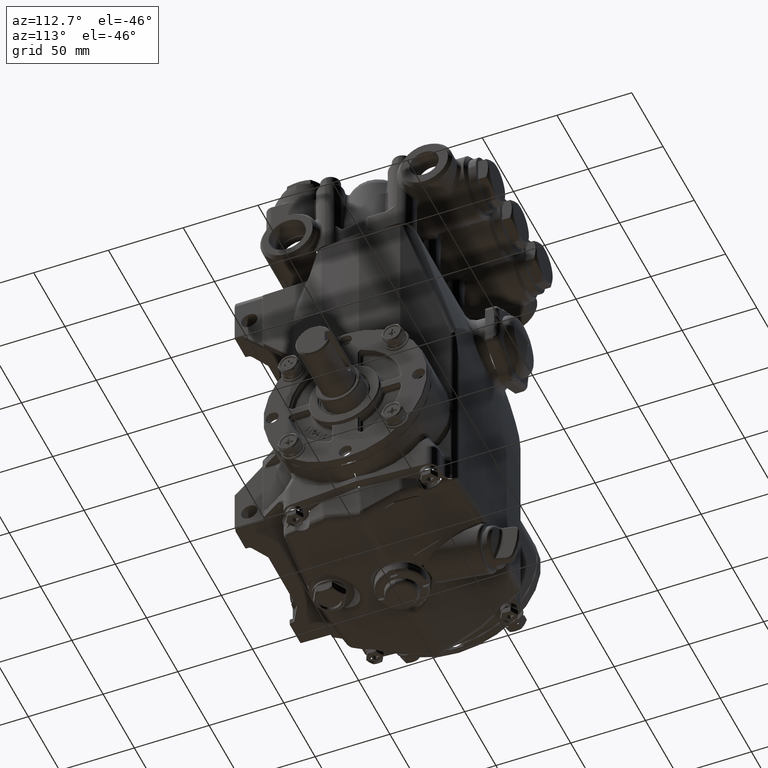
[diagram: clean part render]
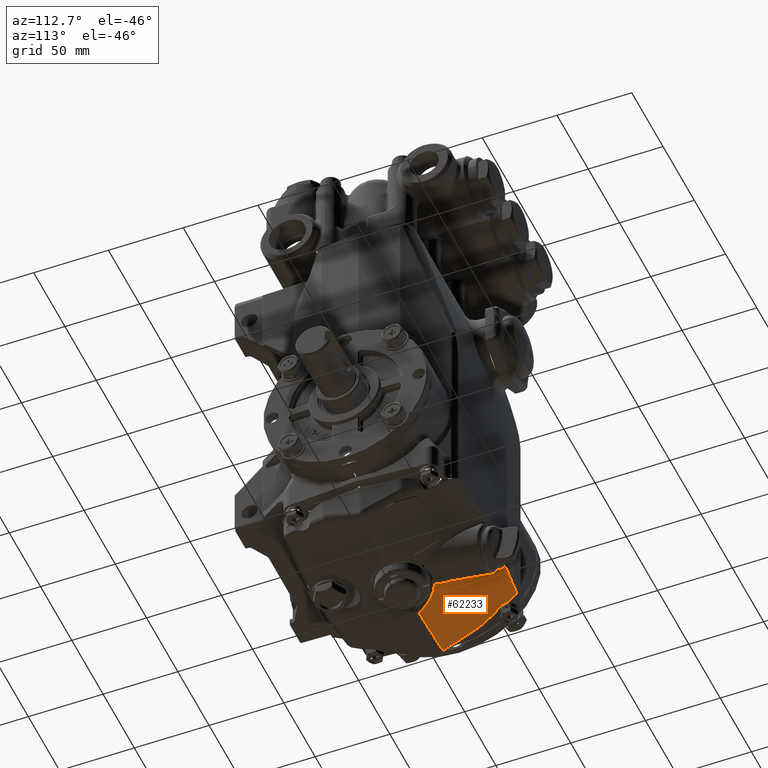
[diagram: same view with one face highlighted and labeled with its STEP entity id]
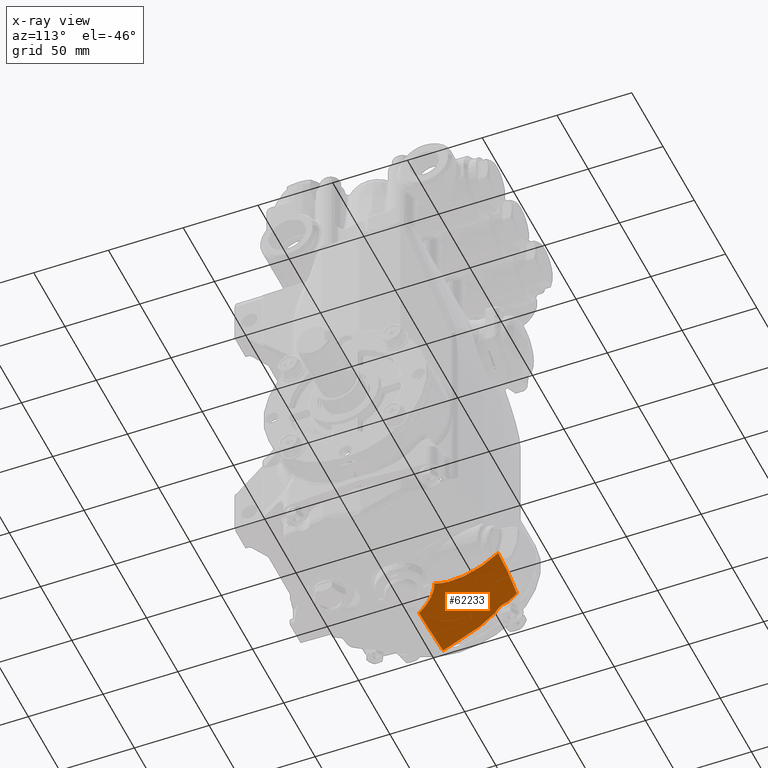
[diagram: x-ray of the same camera — body ghosted, the highlighted face saturated]
A machine part, auxiliary view. The second image highlights one B-rep face of the part: STEP entity #62233.
The next image is the same camera in x-ray: the body ghosted, the highlighted face saturated — about 0% of this face is hidden behind the body in this view.
In plain terms, the highlighted conical surface has half-angle 22.122 deg.
Its self-contained STEP definition (entity closure, byte-faithful):
#431 = EDGE_CURVE ( 'NONE', #23256, #15825, #50522, .T. ) ;
#709 = DIRECTION ( 'NONE',  ( 0.000000000000000000, 0.000000000000000000, 1.000000000000000000 ) ) ;
#1308 = DIRECTION ( 'NONE',  ( -0.000000000000000000, 1.000000000000000000, -0.000000000000000000 ) ) ;
#2458 = CARTESIAN_POINT ( 'NONE',  ( -2.089828594693212249, 2.076546598494372731, -2.425442005259725864 ) ) ;
#3055 = CARTESIAN_POINT ( 'NONE',  ( -2.105961787999701240, 2.028013981821954470, -2.443487220557283734 ) ) ;
#5141 = CARTESIAN_POINT ( 'NONE',  ( -0.4534143523890170613, 0.8407482493142073299, -3.038746929701223731 ) ) ;
#5972 = CARTESIAN_POINT ( 'NONE',  ( -2.419652811728707498, 0.06665084116985581231, -3.209249740225000203 ) ) ;
#6082 = CARTESIAN_POINT ( 'NONE',  ( -2.370908097816133875, 1.041686362196853066, -2.815902620722948058 ) ) ;
#6206 = CARTESIAN_POINT ( 'NONE',  ( -2.282667844776855581, 1.337796322348131284, -2.705411053605920380 ) ) ;
#6833 = CARTESIAN_POINT ( 'NONE',  ( -2.247045865074766446, 1.481586009587264607, -2.650796477659207895 ) ) ;
#7309 = CARTESIAN_POINT ( 'NONE',  ( -0.7953639423799776509, 0.3195549148169788967, -3.239746146987026787 ) ) ;
#7823 = CARTESIAN_POINT ( 'NONE',  ( -2.420161948378638961, 0.06776344674494035047, -3.208730838945085484 ) ) ;
#8776 = B_SPLINE_CURVE_WITH_KNOTS ( 'NONE', 3,
 ( #122194, #95219, #102799, #93376, #93994, #112803, #84578, #122806, #27384, #36812, #75144, #65721, #104017, #46852 ),
 .UNSPECIFIED., .F., .F.,
 ( 4, 2, 2, 2, 2, 2, 4 ),
 ( 0.000000000000000000, 0.002756366929428791853, 0.004134550394143182359, 0.005512733858857573298, 0.006890917323571964237, 0.008269100788286356044, 0.01102546771771510323 ),
 .UNSPECIFIED. ) ;
#11267 = CARTESIAN_POINT ( 'NONE',  ( -2.239192553431414545, 1.514628471646269237, -2.638203994132757746 ) ) ;
#13285 = ORIENTED_EDGE ( 'NONE', *, *, #43758, .T. ) ;
#13709 = CARTESIAN_POINT ( 'NONE',  ( -2.106833777908742267, 2.025303016463327666, -2.444498181534298986 ) ) ;
#13776 = CARTESIAN_POINT ( 'NONE',  ( -2.351981269848030909, 1.100078426941403675, -2.794328555038241735 ) ) ;
#15633 = CARTESIAN_POINT ( 'NONE',  ( -2.338981467347810206, 1.139969586866302897, -2.779587295815173054 ) ) ;
#15825 = VERTEX_POINT ( 'NONE', #11267 ) ;
#16019 = CARTESIAN_POINT ( 'NONE',  ( -2.419676816361628902, 0.06668264514864659376, -3.209233735378106189 ) ) ;
#16137 = CARTESIAN_POINT ( 'NONE',  ( -0.7633188674158031262, 0.3692218355631260995, -3.220819549807315774 ) ) ;
#17366 = CARTESIAN_POINT ( 'NONE',  ( -0.5471699861507840490, 0.5940639626121999584, -3.136651000206044593 ) ) ;
#19441 = VERTEX_POINT ( 'NONE', #77503 ) ;
#20900 = CARTESIAN_POINT ( 'NONE',  ( -0.4970818853032223927, 0.6282010003291977895, -3.124100886979437330 ) ) ;
#21126 = CARTESIAN_POINT ( 'NONE',  ( -2.145483851197569347, 1.895385442356894767, -2.493269591574716060 ) ) ;
#22540 = CARTESIAN_POINT ( 'NONE',  ( -2.086244960231473655, 2.086973706991400501, -2.421576619972003463 ) ) ;
#23202 = CARTESIAN_POINT ( 'NONE',  ( -2.365754402666913947, 1.060583947308351593, -2.808800569280849313 ) ) ;
#23256 = VERTEX_POINT ( 'NONE', #38525 ) ;
#23590 = VERTEX_POINT ( 'NONE', #37607 ) ;
#25687 = CARTESIAN_POINT ( 'NONE',  ( -2.315816207667558135, 1.216937408934904763, -2.750892497880090826 ) ) ;
#25878 = CARTESIAN_POINT ( 'NONE',  ( -0.6480855539005315746, 1.396325284329595462, -2.807228530220871932 ) ) ;
#26487 = CARTESIAN_POINT ( 'NONE',  ( -0.3911913583454598164, 0.7533386299745664649, -3.075654932312250178 ) ) ;
#27384 = CARTESIAN_POINT ( 'NONE',  ( -2.133926601213085750, 1.729028275977938511, -2.562643219636337122 ) ) ;
#27523 = CARTESIAN_POINT ( 'NONE',  ( -2.248284771375940405, 1.476384998560242190, -2.652778579777888890 ) ) ;
#28923 = FACE_OUTER_BOUND ( 'NONE', #116208, .T. ) ;
#31678 = ORIENTED_EDGE ( 'NONE', *, *, #431, .T. ) ;
#31935 = CARTESIAN_POINT ( 'NONE',  ( -2.101909552334381370, 2.040545470188020349, -2.438816248550844445 ) ) ;
#32167 = CARTESIAN_POINT ( 'NONE',  ( -0.4970818853032223927, 0.6282010003291977895, -3.124100886979437330 ) ) ;
#33796 = CARTESIAN_POINT ( 'NONE',  ( -2.083051459980967746, 2.096202434341106979, -2.418157522767000689 ) ) ;
#35261 = CARTESIAN_POINT ( 'NONE',  ( -0.5963636592327616892, 2.221157972251702528, -2.473459348452818674 ) ) ;
#35456 = CARTESIAN_POINT ( 'NONE',  ( -2.419924013427050546, 0.06702762038351636753, -3.209061766227430113 ) ) ;
#36325 = CARTESIAN_POINT ( 'NONE',  ( -2.243946200967676496, 1.494683181079834666, -2.645802879278591924 ) ) ;
#36812 = CARTESIAN_POINT ( 'NONE',  ( -2.130418196808632203, 1.762905439732481039, -2.549180981745167163 ) ) ;
#36825 = CARTESIAN_POINT ( 'NONE',  ( -0.8309994691032215330, 0.2557997475426720957, -3.264205412823909302 ) ) ;
#37414 = CARTESIAN_POINT ( 'NONE',  ( -0.8679404141749670343, 0.1770556956673244864, -3.294653311257132344 ) ) ;
#37532 = CARTESIAN_POINT ( 'NONE',  ( -2.295534275988072359, 1.288919518299862510, -2.723875107311677368 ) ) ;
#37607 = CARTESIAN_POINT ( 'NONE',  ( -2.419627957355980463, 0.06661965511511502847, -3.209265597297011663 ) ) ;
#38525 = CARTESIAN_POINT ( 'NONE',  ( -2.365754402666913947, 1.060583947308351593, -2.808800569280849313 ) ) ;
#38920 = DIRECTION ( 'NONE',  ( 0.000000000000000000, -1.000000000000000000, 0.000000000000000000 ) ) ;
#40723 = CARTESIAN_POINT ( 'NONE',  ( -2.108531034399803605, 2.019999179185219873, -2.446476957507912608 ) ) ;
#41110 = ORIENTED_EDGE ( 'NONE', *, *, #85557, .T. ) ;
#42574 = CARTESIAN_POINT ( 'NONE',  ( -2.116999414656701273, 1.993115830292623736, -2.456520493410592199 ) ) ;
#43328 = EDGE_CURVE ( 'NONE', #15825, #68211, #8776, .T. ) ;
#43739 = CARTESIAN_POINT ( 'NONE',  ( -2.365754402666913947, 1.060583947308351593, -2.808800569280849313 ) ) ;
#43758 = EDGE_CURVE ( 'NONE', #19441, #123205, #61061, .T. ) ;
#44506 = CARTESIAN_POINT ( 'NONE',  ( -2.305207261060470358, 1.253860689892042135, -2.737060864516472236 ) ) ;
#44698 = CARTESIAN_POINT ( 'NONE',  ( -0.5498264254133607976, 1.029590300909865919, -2.959451242769360224 ) ) ;
#45128 = CARTESIAN_POINT ( 'NONE',  ( -2.255873078898388950, 1.444835016267797423, -2.664792731496312683 ) ) ;
#45615 = CARTESIAN_POINT ( 'NONE',  ( -0.8174908305297902134, 0.2815892874649755795, -3.254283504923779269 ) ) ;
#45929 = CARTESIAN_POINT ( 'NONE',  ( -0.5738984000534242957, 2.288151114768675942, -2.446901362131494562 ) ) ;
#46852 = CARTESIAN_POINT ( 'NONE',  ( -2.145483851197569347, 1.895385442356894767, -2.493269591574716060 ) ) ;
#46864 = CARTESIAN_POINT ( 'NONE',  ( -0.6172614145108538120, 0.5365550616200835954, -3.157937945881998498 ) ) ;
#46990 = CARTESIAN_POINT ( 'NONE',  ( -2.320277892950628473, 1.201680539668949166, -2.756597568482602068 ) ) ;
#47165 = B_SPLINE_CURVE_WITH_KNOTS ( 'NONE', 3,
 ( #116719, #119770, #69648, #42574, #100392, #40723, #13709, #3055, #31935, #79074, #2458, #22540, #101019, #72128, #33796, #71493, #89719, #99758 ),
 .UNSPECIFIED., .F., .F.,
 ( 4, 1, 1, 1, 2, 2, 1, 1, 1, 2, 2, 4 ),
 ( 0.7520629099249047655, 0.8140471824436776860, 0.8450393187030641462, 0.8605353868327572098, 0.8682834208976040191, 0.8760314549624508285, 0.9070235912218362895, 0.9225196593515294641, 0.9302676934163758293, 0.9341417104487990120, 0.9380157274812220836, 1.000000000000000000 ),
 .UNSPECIFIED. ) ;
#47400 = CARTESIAN_POINT ( 'NONE',  ( -2.371414709397988929, 1.031828219432738392, -2.819877866713105252 ) ) ;
#48365 = CARTESIAN_POINT ( 'NONE',  ( 0.000000000000000000, 2.421259842519685179, 16.29921259842519632 ) ) ;
#48563 = CARTESIAN_POINT ( 'NONE',  ( -0.5738984000534242957, 2.288151114768675942, -2.446901362131494562 ) ) ;
#50522 = B_SPLINE_CURVE_WITH_KNOTS ( 'NONE', 3,
 ( #23202, #13776, #15633, #111692, #46990, #85326, #122943, #25687, #123537, #114149, #44506, #37532, #113526, #121693, #92902, #64025, #6206, #94132, #53961, #103531, #75898, #45128, #112936, #56418, #102318, #122325, #27523, #92280, #82861, #6833, #36325, #93508 ),
 .UNSPECIFIED., .F., .F.,
 ( 4, 2, 1, 2, 2, 1, 1, 1, 1, 2, 2, 1, 1, 1, 1, 1, 1, 2, 2, 1, 1, 1, 4 ),
 ( 0.000000000000000000, 0.1090416086334998202, 0.1363020107918748725, 0.1397095610616719552, 0.1431171113314690102, 0.1499322118710632867, 0.1635624129502522006, 0.2180832172670074121, 0.2453436194253847680, 0.2487511696951822948, 0.2504549448300812386, 0.2521587199649801825, 0.2589738205045760133, 0.2726040215837676195, 0.3271248259005327674, 0.3543852280589153136, 0.3680154291381066423, 0.3748305296777019735, 0.3756824172451514454, 0.3765343048126008063, 0.3782380799475034139, 0.3816456302173102944, 0.4361664345342073368 ),
 .UNSPECIFIED. ) ;
#51464 = B_SPLINE_CURVE_WITH_KNOTS ( 'NONE', 3,
 ( #54332, #5972, #16019, #83235, #35456, #83837, #7823 ),
 .UNSPECIFIED., .F., .F.,
 ( 4, 3, 4 ),
 ( 0.000000000000000000, 3.270175700441475680E-06, 3.547221947968475398E-05 ),
 .UNSPECIFIED. ) ;
#52889 = CARTESIAN_POINT ( 'NONE',  ( -0.5866588876545771880, 1.127834383794114270, -2.918421796937302304 ) ) ;
#53062 = B_SPLINE_CURVE_WITH_KNOTS ( 'NONE', 3,
 ( #80540, #69281, #60470, #88756, #108801, #32167 ),
 .UNSPECIFIED., .F., .F.,
 ( 4, 2, 4 ),
 ( 1.868354362588067661E-17, 0.002191692576854439075, 0.004383385153708859935 ),
 .UNSPECIFIED. ) ;
#53961 = CARTESIAN_POINT ( 'NONE',  ( -2.280101588475906826, 1.347707197826654379, -2.701661445491394531 ) ) ;
#54144 = CARTESIAN_POINT ( 'NONE',  ( -0.6367917226464995251, 1.328477949759711230, -2.835208735866425300 ) ) ;
#54292 = CARTESIAN_POINT ( 'NONE',  ( -2.059218054211461979, 2.164254523910876138, -2.392964009919302359 ) ) ;
#54332 = CARTESIAN_POINT ( 'NONE',  ( -2.419627957355980463, 0.06661965511511502847, -3.209265597297011663 ) ) ;
#54444 = CARTESIAN_POINT ( 'NONE',  ( -0.7716629779327800476, 0.3569129183703940167, -3.225498754172656302 ) ) ;
#55418 = ORIENTED_EDGE ( 'NONE', *, *, #99977, .T. ) ;
#56418 = CARTESIAN_POINT ( 'NONE',  ( -2.249065871622271562, 1.473120638703809160, -2.654022195501463788 ) ) ;
#57240 = ORIENTED_EDGE ( 'NONE', *, *, #120472, .T. ) ;
#57875 = ORIENTED_EDGE ( 'NONE', *, *, #89218, .T. ) ;
#59878 = ORIENTED_EDGE ( 'NONE', *, *, #43328, .T. ) ;
#60470 = CARTESIAN_POINT ( 'NONE',  ( -0.3966238274006225750, 0.6812831351925608958, -3.104846312104686312 ) ) ;
#60776 = ORIENTED_EDGE ( 'NONE', *, *, #66845, .T. ) ;
#61061 = B_SPLINE_CURVE_WITH_KNOTS ( 'NONE', 3,
 ( #54292, #92618, #73742, #64968 ),
 .UNSPECIFIED., .F., .F.,
 ( 4, 4 ),
 ( 0.001437630537140027840, 0.03931457083484087706 ),
 .UNSPECIFIED. ) ;
#61118 = VERTEX_POINT ( 'NONE', #117512 ) ;
#62189 = CIRCLE ( 'NONE', #72239, 19.65795820946284067 ) ;
#62233 = ADVANCED_FACE ( 'NONE', ( #28923 ), #112123, .T. ) ;
#64025 = CARTESIAN_POINT ( 'NONE',  ( -2.282950996085811646, 1.336706305725359201, -2.705823323501328925 ) ) ;
#64201 = CARTESIAN_POINT ( 'NONE',  ( -0.4628118034915018053, 0.8558354163146361104, -3.032389136931446849 ) ) ;
#64334 = EDGE_CURVE ( 'NONE', #101251, #103336, #115853, .T. ) ;
#64816 = CARTESIAN_POINT ( 'NONE',  ( -0.3680013907330603740, 0.7260055790598713976, -3.087226915816920325 ) ) ;
#64968 = CARTESIAN_POINT ( 'NONE',  ( -0.5738984000534242957, 2.288151114768675942, -2.446901362131494562 ) ) ;
#65070 = CARTESIAN_POINT ( 'NONE',  ( -2.387660292907503923, 0.7104732951494944215, -2.949495960029869135 ) ) ;
#65429 = CARTESIAN_POINT ( 'NONE',  ( -0.6674803062845373613, 1.602550887205807628, -2.722676000486592418 ) ) ;
#65721 = CARTESIAN_POINT ( 'NONE',  ( -2.131072140755676081, 1.830005713209250873, -2.521656605006796781 ) ) ;
#66845 = EDGE_CURVE ( 'NONE', #103336, #23590, #62189, .T. ) ;
#68211 = VERTEX_POINT ( 'NONE', #21126 ) ;
#69281 = CARTESIAN_POINT ( 'NONE',  ( -0.3700093640393017358, 0.6915924702421532011, -3.101182696825049323 ) ) ;
#69648 = CARTESIAN_POINT ( 'NONE',  ( -2.128799569645894341, 1.954344364497868858, -2.471047849660535256 ) ) ;
#71424 = CARTESIAN_POINT ( 'NONE',  ( -2.369020545168805114, 1.051271604822057393, -2.812210598031124054 ) ) ;
#71493 = CARTESIAN_POINT ( 'NONE',  ( -2.074825091056716087, 2.119887397135802320, -2.409385396393689316 ) ) ;
#72128 = CARTESIAN_POINT ( 'NONE',  ( -2.083615659677913623, 2.094576235768910610, -2.418759864974992624 ) ) ;
#72239 = AXIS2_PLACEMENT_3D ( 'NONE', #107437, #1308, #709 ) ;
#73587 = CARTESIAN_POINT ( 'NONE',  ( -0.6684412451386717580, 1.741995803894224704, -2.665922238386851717 ) ) ;
#73742 = CARTESIAN_POINT ( 'NONE',  ( -1.070860537897486697, 2.270154111408670516, -2.439006516763121635 ) ) ;
#74227 = CARTESIAN_POINT ( 'NONE',  ( -0.4337187138526713559, 0.8110008867951175038, -3.051294156443625116 ) ) ;
#74473 = CARTESIAN_POINT ( 'NONE',  ( -2.420161948378638961, 0.06776344674494035047, -3.208730838945085484 ) ) ;
#74536 = CARTESIAN_POINT ( 'NONE',  ( -0.5946736150887996786, 0.5563539949043704302, -3.150591960312228323 ) ) ;
#74844 = CARTESIAN_POINT ( 'NONE',  ( -0.6521499292801791192, 1.949079147831841219, -2.582260020623050600 ) ) ;
#75144 = CARTESIAN_POINT ( 'NONE',  ( -2.129781624731585055, 1.779814586331044390, -2.542335540109347036 ) ) ;
#75157 = CARTESIAN_POINT ( 'NONE',  ( -0.8878144901490488961, 0.1227363409386832277, -3.315857240250769333 ) ) ;
#75898 = CARTESIAN_POINT ( 'NONE',  ( -2.265074398398038369, 1.407110830522420919, -2.679140469238177946 ) ) ;
#77503 = CARTESIAN_POINT ( 'NONE',  ( -2.059218054211461979, 2.164254523910876138, -2.392964009919302359 ) ) ;
#77609 = B_SPLINE_CURVE_WITH_KNOTS ( 'NONE', 3,
 ( #110338, #6082, #71424, #43739 ),
 .UNSPECIFIED., .F., .F.,
 ( 4, 4 ),
 ( 0.000000000000000000, 1.000000000000000000 ),
 .UNSPECIFIED. ) ;
#79074 = CARTESIAN_POINT ( 'NONE',  ( -2.096651831421441070, 2.056456258411447191, -2.432897406385435168 ) ) ;
#80540 = CARTESIAN_POINT ( 'NONE',  ( -0.3426455728455040095, 0.7003334656591743146, -3.098112262170271247 ) ) ;
#82861 = CARTESIAN_POINT ( 'NONE',  ( -2.248156282820667595, 1.476923258293831198, -2.652573483217247841 ) ) ;
#83043 = CARTESIAN_POINT ( 'NONE',  ( -0.5061633507394061038, 0.9329981344593077930, -2.999928859491782784 ) ) ;
#83235 = CARTESIAN_POINT ( 'NONE',  ( -2.419699983530172904, 0.06671497603168544122, -3.209217618526996940 ) ) ;
#83348 = CARTESIAN_POINT ( 'NONE',  ( -0.5225142047821269564, 0.6117612229315740890, -3.130135046924182429 ) ) ;
#83637 = CARTESIAN_POINT ( 'NONE',  ( -0.6141270215004963617, 2.153592995815478695, -2.500358790813803189 ) ) ;
#83837 = CARTESIAN_POINT ( 'NONE',  ( -2.420073495337640601, 0.06739229570511282019, -3.208893843485244535 ) ) ;
#84273 = CARTESIAN_POINT ( 'NONE',  ( -0.5361859672735805882, 0.9969462738231066323, -2.973112864119447973 ) ) ;
#84578 = CARTESIAN_POINT ( 'NONE',  ( -2.144604876757689738, 1.679246927505528841, -2.581798901894343690 ) ) ;
#85326 = CARTESIAN_POINT ( 'NONE',  ( -2.316944926987718034, 1.213068695378272555, -2.752339487997845335 ) ) ;
#85557 = EDGE_CURVE ( 'NONE', #23590, #108200, #51464, .T. ) ;
#88137 = CARTESIAN_POINT ( 'NONE',  ( -2.420161948378638961, 0.06776344674494035047, -3.208730838945085484 ) ) ;
#88756 = CARTESIAN_POINT ( 'NONE',  ( -0.4482395774729430737, 0.6572970593931269923, -3.113475619428222707 ) ) ;
#89218 = EDGE_CURVE ( 'NONE', #123205, #61118, #112167, .T. ) ;
#89719 = CARTESIAN_POINT ( 'NONE',  ( -2.067041883326646623, 2.142107015957057214, -2.401159619073502505 ) ) ;
#91121 = CARTESIAN_POINT ( 'NONE',  ( -0.9029669646989502141, 0.06661965511511180882, -3.337996256848758669 ) ) ;
#91213 = CARTESIAN_POINT ( 'NONE',  ( -0.4897899592813344527, 0.9016736185435318962, -3.013091524586184455 ) ) ;
#91622 = EDGE_CURVE ( 'NONE', #68211, #19441, #47165, .T. ) ;
#92280 = CARTESIAN_POINT ( 'NONE',  ( -2.248248977577885110, 1.476534803439124133, -2.652721502710771340 ) ) ;
#92486 = B_SPLINE_CURVE_WITH_KNOTS ( 'NONE', 3,
 ( #74473, #112752, #65070, #47400 ),
 .UNSPECIFIED., .F., .F.,
 ( 4, 4 ),
 ( 0.06567318600340145418, 1.000000000000000000 ),
 .UNSPECIFIED. ) ;
#92618 = CARTESIAN_POINT ( 'NONE',  ( -1.565963719244903851, 2.228870077307258057, -2.420877833532526502 ) ) ;
#92902 = CARTESIAN_POINT ( 'NONE',  ( -2.283132887298811031, 1.336006566476730884, -2.706087965433351172 ) ) ;
#93376 = CARTESIAN_POINT ( 'NONE',  ( -2.169138734040908290, 1.614760587758876653, -2.605383527148857681 ) ) ;
#93390 = CARTESIAN_POINT ( 'NONE',  ( -0.7203343572980167586, 0.4295873674661025987, -3.197924714183749018 ) ) ;
#93508 = CARTESIAN_POINT ( 'NONE',  ( -2.239192553431414545, 1.514628471646269237, -2.638203994132757746 ) ) ;
#93942 = ORIENTED_EDGE ( 'NONE', *, *, #91622, .T. ) ;
#93994 = CARTESIAN_POINT ( 'NONE',  ( -2.161842876877474673, 1.630715714842075004, -2.599690377155279730 ) ) ;
#94050 = AXIS2_PLACEMENT_3D ( 'NONE', #48365, #38920, #116791 ) ;
#94132 = CARTESIAN_POINT ( 'NONE',  ( -2.281958888355039239, 1.340527431728770535, -2.704378018737677358 ) ) ;
#95219 = CARTESIAN_POINT ( 'NONE',  ( -2.214422369733134222, 1.540516566820404609, -2.630532661990288901 ) ) ;
#95344 = CARTESIAN_POINT ( 'NONE',  ( -2.371414709397988929, 1.031828219432738392, -2.819877866713105252 ) ) ;
#99758 = CARTESIAN_POINT ( 'NONE',  ( -2.059218054211461979, 2.164254523910876138, -2.392964009919302359 ) ) ;
#99977 = EDGE_CURVE ( 'NONE', #108200, #114507, #92486, .T. ) ;
#100392 = CARTESIAN_POINT ( 'NONE',  ( -2.111075184509448199, 2.012008181735601475, -2.449459603712962785 ) ) ;
#101019 = CARTESIAN_POINT ( 'NONE',  ( -2.084672288212998659, 2.091524311730605490, -2.419890504446527757 ) ) ;
#101251 = VERTEX_POINT ( 'NONE', #20900 ) ;
#101772 = EDGE_CURVE ( 'NONE', #61118, #101251, #53062, .T. ) ;
#101867 = CARTESIAN_POINT ( 'NONE',  ( -0.6060625354612918514, 1.194235142503861535, -2.890804212450340582 ) ) ;
#102194 = CARTESIAN_POINT ( 'NONE',  ( -0.6817275042837560584, 0.4744935850196223548, -3.181064278049019922 ) ) ;
#102318 = CARTESIAN_POINT ( 'NONE',  ( -2.248288215315915384, 1.476370488140457127, -2.652784111252117771 ) ) ;
#102799 = CARTESIAN_POINT ( 'NONE',  ( -2.193942005129690287, 1.568890783896172314, -2.621296987586367422 ) ) ;
#103336 = VERTEX_POINT ( 'NONE', #91121 ) ;
#103531 = CARTESIAN_POINT ( 'NONE',  ( -2.273701605687346472, 1.372648706803201168, -2.692217622606408067 ) ) ;
#104017 = CARTESIAN_POINT ( 'NONE',  ( -2.136128651427034342, 1.862958303548111205, -2.507604959063652217 ) ) ;
#107437 = CARTESIAN_POINT ( 'NONE',  ( 0.000000000000000000, 0.06661965511511180882, 16.29921259842519632 ) ) ;
#108200 = VERTEX_POINT ( 'NONE', #88137 ) ;
#108801 = CARTESIAN_POINT ( 'NONE',  ( -0.4732781569009282263, 0.6435880355735366098, -3.118453132177527287 ) ) ;
#110338 = CARTESIAN_POINT ( 'NONE',  ( -2.371414709397988929, 1.031828219432738392, -2.819877866713105252 ) ) ;
#111258 = CARTESIAN_POINT ( 'NONE',  ( -0.6420323799557895450, 2.017555186105729259, -2.554758527736197049 ) ) ;
#111692 = CARTESIAN_POINT ( 'NONE',  ( -2.323670153133079008, 1.190323381976442052, -2.760835124730283141 ) ) ;
#111878 = CARTESIAN_POINT ( 'NONE',  ( -0.6634335805003184205, 1.533324859346406832, -2.750977216109902646 ) ) ;
#112123 = CONICAL_SURFACE ( 'NONE', #94050, 18.70078740157480368, 0.3861007243444653514 ) ;
#112167 = B_SPLINE_CURVE_WITH_KNOTS ( 'NONE', 3,
 ( #45929, #35261, #83637, #111258, #74844, #121871, #73587, #65429, #111878, #25878, #54144, #101867, #52889, #44698, #84273, #83043, #91213, #64201, #5141, #74227, #112499, #26487, #64816, #116196 ),
 .UNSPECIFIED., .F., .F.,
 ( 4, 2, 2, 2, 2, 2, 2, 2, 2, 2, 2, 4 ),
 ( 8.212042420064225385E-17, 0.005675556025011336755, 0.01135111205002259024, 0.01702666807503384547, 0.02270222410004510069, 0.02837778012505635591, 0.03405333615006760767, 0.03689111416257323528, 0.03972889217507886289, 0.04114778118133168017, 0.04256667018758450438, 0.04540444820009011812 ),
 .UNSPECIFIED. ) ;
#112499 = CARTESIAN_POINT ( 'NONE',  ( -0.4234017072699213791, 0.7963179017693519102, -3.057493239635920901 ) ) ;
#112752 = CARTESIAN_POINT ( 'NONE',  ( -2.403909252810775943, 0.3891183708662505070, -3.079113632364371078 ) ) ;
#112803 = CARTESIAN_POINT ( 'NONE',  ( -2.149601027837257927, 1.662927277722454633, -2.587908098182563066 ) ) ;
#112936 = CARTESIAN_POINT ( 'NONE',  ( -2.251129438980759456, 1.464512624647024808, -2.657301042555916037 ) ) ;
#113412 = CARTESIAN_POINT ( 'NONE',  ( -0.9029669646989502141, 0.06661965511511180882, -3.337996256848758669 ) ) ;
#113526 = CARTESIAN_POINT ( 'NONE',  ( -2.286810626223169773, 1.321891323511968697, -2.711425231009965575 ) ) ;
#114023 = CARTESIAN_POINT ( 'NONE',  ( -0.4970818853032223927, 0.6282010003291977895, -3.124100886979437330 ) ) ;
#114149 = CARTESIAN_POINT ( 'NONE',  ( -2.312742505360957157, 1.227538606126797438, -2.746924879943310138 ) ) ;
#114507 = VERTEX_POINT ( 'NONE', #95344 ) ;
#114863 = ORIENTED_EDGE ( 'NONE', *, *, #64334, .T. ) ;
#115853 = B_SPLINE_CURVE_WITH_KNOTS ( 'NONE', 3,
 ( #114023, #83348, #17366, #74536, #46864, #102194, #93390, #16137, #54444, #121575, #7309, #45615, #36825, #37414, #75157, #113412 ),
 .UNSPECIFIED., .F., .F.,
 ( 4, 2, 2, 2, 2, 2, 2, 4 ),
 ( 0.004321105511794192527, 0.006671534519484894135, 0.009021963527175595743, 0.01372282154255697467, 0.01489803604640232808, 0.01607325055024767801, 0.01842367955793837442, 0.02312453757331978110 ),
 .UNSPECIFIED. ) ;
#116196 = CARTESIAN_POINT ( 'NONE',  ( -0.3426455728455040095, 0.7003334656591743146, -3.098112262170271247 ) ) ;
#116208 = EDGE_LOOP ( 'NONE', ( #57875, #116458, #114863, #60776, #41110, #55418, #57240, #31678, #59878, #93942, #13285 ) ) ;
#116458 = ORIENTED_EDGE ( 'NONE', *, *, #101772, .T. ) ;
#116719 = CARTESIAN_POINT ( 'NONE',  ( -2.145483851197569347, 1.895385442356894767, -2.493269591574716060 ) ) ;
#116791 = DIRECTION ( 'NONE',  ( 0.000000000000000000, 0.000000000000000000, -1.000000000000000000 ) ) ;
#117512 = CARTESIAN_POINT ( 'NONE',  ( -0.3426455728455040095, 0.7003334656591743146, -3.098112262170271247 ) ) ;
#119770 = CARTESIAN_POINT ( 'NONE',  ( -2.138831769159201812, 1.919420085972990631, -2.484195312678076473 ) ) ;
#120472 = EDGE_CURVE ( 'NONE', #114507, #23256, #77609, .T. ) ;
#121575 = CARTESIAN_POINT ( 'NONE',  ( -0.7876771723170491457, 0.3320901493747618338, -3.234958017222626214 ) ) ;
#121693 = CARTESIAN_POINT ( 'NONE',  ( -2.283658463273420036, 1.333986526167804998, -2.706851882653311669 ) ) ;
#121871 = CARTESIAN_POINT ( 'NONE',  ( -0.6653568419440737403, 1.811299788196715221, -2.637841770140414432 ) ) ;
#122194 = CARTESIAN_POINT ( 'NONE',  ( -2.239192553431414545, 1.514628471646269237, -2.638203994132757746 ) ) ;
#122325 = CARTESIAN_POINT ( 'NONE',  ( -2.248307760000155309, 1.476288834368351566, -2.652815217858782493 ) ) ;
#122806 = CARTESIAN_POINT ( 'NONE',  ( -2.136767495776312309, 1.712297396870862798, -2.569166500715525991 ) ) ;
#122943 = CARTESIAN_POINT ( 'NONE',  ( -2.316205731655210709, 1.215600162030142872, -2.751392741361267547 ) ) ;
#123205 = VERTEX_POINT ( 'NONE', #48563 ) ;
#123537 = CARTESIAN_POINT ( 'NONE',  ( -2.314792234545676841, 1.220460012799882366, -2.749574469148639011 ) ) ;